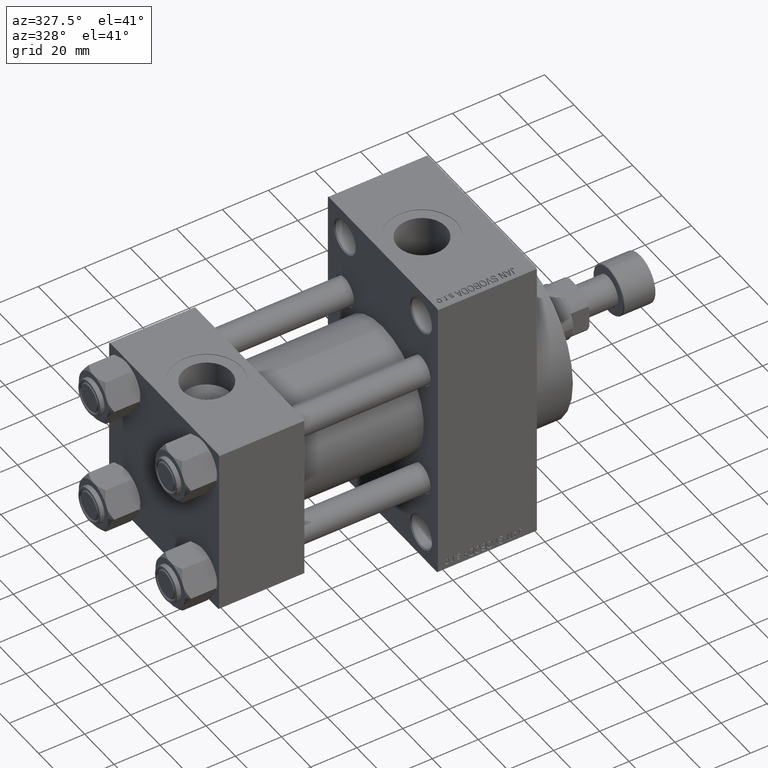
[diagram: clean part render]
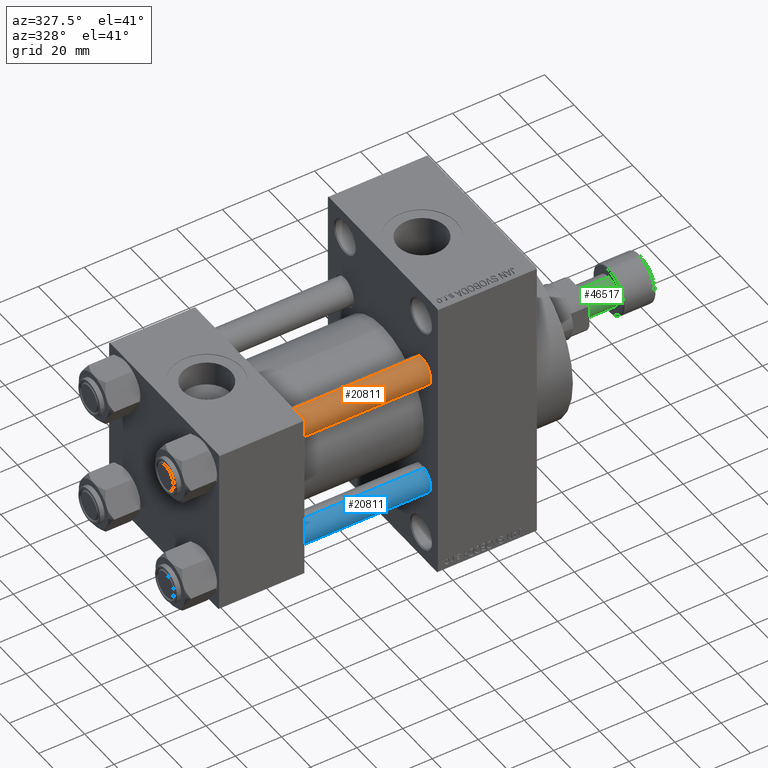
[diagram: same view with three faces highlighted in distinct colors, each labeled with its STEP entity id]
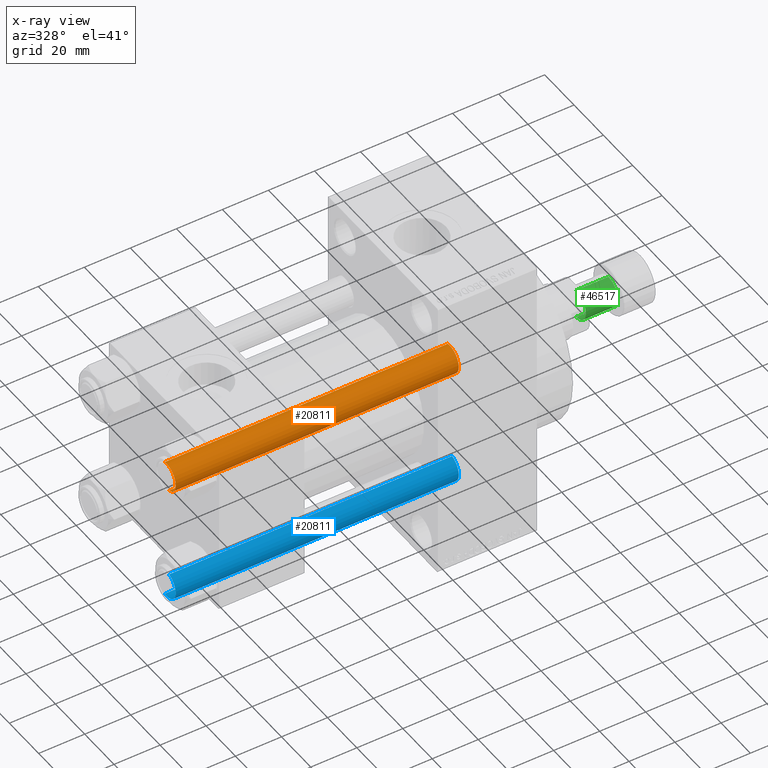
[diagram: x-ray of the same camera — body ghosted, the three highlighted faces saturated]
A machine part, auxiliary view with three faces highlighted in distinct colors.
The next image is the same camera in x-ray (body ghosted, the three faces saturated) — at least one of them is partly hidden behind the body in this view.
Their STEP definitions:

[orange] entity #20811 — the highlighted cylindrical surface (edge-blend (fillet) strip) has radius 6 mm, axis along (1, 0, 0).
#940 = CARTESIAN_POINT ( 'NONE',  ( 6.000000000000000888, 7.347880794884120722E-16, 123.5000000000000426 ) ) ;
#2737 = DIRECTION ( 'NONE',  ( -0.000000000000000000, -0.000000000000000000, -1.000000000000000000 ) ) ;
#4804 = VECTOR ( 'NONE', #46732, 1000.000000000000000 ) ;
#12340 = ORIENTED_EDGE ( 'NONE', *, *, #39469, .F. ) ;
#13114 = AXIS2_PLACEMENT_3D ( 'NONE', #14000, #30106, #18793 ) ;
#14000 = CARTESIAN_POINT ( 'NONE',  ( 0.000000000000000000, 0.000000000000000000, 0.4999999999999865663 ) ) ;
#17486 = AXIS2_PLACEMENT_3D ( 'NONE', #38247, #19477, #19004 ) ;
#17578 = VERTEX_POINT ( 'NONE', #940 ) ;
#18793 = DIRECTION ( 'NONE',  ( 1.000000000000000000, 0.000000000000000000, 0.000000000000000000 ) ) ;
#19004 = DIRECTION ( 'NONE',  ( -1.000000000000000000, 0.000000000000000000, 0.000000000000000000 ) ) ;
#19477 = DIRECTION ( 'NONE',  ( -0.000000000000000000, -0.000000000000000000, -1.000000000000000000 ) ) ;
#20811 = ADVANCED_FACE ( 'NONE', ( #34168 ), #37778, .T. ) ;
#20968 = LINE ( 'NONE', #45789, #4804 ) ;
#21013 = LINE ( 'NONE', #24866, #27952 ) ;
#21462 = CARTESIAN_POINT ( 'NONE',  ( 0.000000000000000000, 0.000000000000000000, 123.5000000000000426 ) ) ;
#23132 = VERTEX_POINT ( 'NONE', #24255 ) ;
#24255 = CARTESIAN_POINT ( 'NONE',  ( -6.000000000000000888, 0.000000000000000000, 0.4999999999999865663 ) ) ;
#24806 = VERTEX_POINT ( 'NONE', #47483 ) ;
#24866 = CARTESIAN_POINT ( 'NONE',  ( 6.000000000000000888, 7.347880794884120722E-16, 124.0000000000000000 ) ) ;
#25238 = ORIENTED_EDGE ( 'NONE', *, *, #35330, .T. ) ;
#27362 = EDGE_LOOP ( 'NONE', ( #36211, #42442, #25238, #12340 ) ) ;
#27952 = VECTOR ( 'NONE', #2737, 1000.000000000000000 ) ;
#28903 = VERTEX_POINT ( 'NONE', #38616 ) ;
#29296 = CIRCLE ( 'NONE', #46206, 6.000000000000000888 ) ;
#30106 = DIRECTION ( 'NONE',  ( -0.000000000000000000, -0.000000000000000000, 1.000000000000000000 ) ) ;
#33869 = CIRCLE ( 'NONE', #13114, 6.000000000000000888 ) ;
#34168 = FACE_OUTER_BOUND ( 'NONE', #27362, .T. ) ;
#35330 = EDGE_CURVE ( 'NONE', #28903, #23132, #33869, .T. ) ;
#36201 = EDGE_CURVE ( 'NONE', #24806, #17578, #29296, .T. ) ;
#36211 = ORIENTED_EDGE ( 'NONE', *, *, #36201, .T. ) ;
#37778 = CYLINDRICAL_SURFACE ( 'NONE', #17486, 6.000000000000000888 ) ;
#38247 = CARTESIAN_POINT ( 'NONE',  ( 0.000000000000000000, 0.000000000000000000, 124.0000000000000000 ) ) ;
#38616 = CARTESIAN_POINT ( 'NONE',  ( 6.000000000000000888, 7.347880794884120722E-16, 0.4999999999999865663 ) ) ;
#39469 = EDGE_CURVE ( 'NONE', #24806, #23132, #20968, .T. ) ;
#42074 = EDGE_CURVE ( 'NONE', #17578, #28903, #21013, .T. ) ;
#42442 = ORIENTED_EDGE ( 'NONE', *, *, #42074, .T. ) ;
#42657 = DIRECTION ( 'NONE',  ( 0.000000000000000000, 0.000000000000000000, -1.000000000000000000 ) ) ;
#43133 = DIRECTION ( 'NONE',  ( 1.000000000000000000, 0.000000000000000000, 0.000000000000000000 ) ) ;
#45789 = CARTESIAN_POINT ( 'NONE',  ( -6.000000000000000888, 0.000000000000000000, 124.0000000000000000 ) ) ;
#46206 = AXIS2_PLACEMENT_3D ( 'NONE', #21462, #42657, #43133 ) ;
#46732 = DIRECTION ( 'NONE',  ( -0.000000000000000000, -0.000000000000000000, -1.000000000000000000 ) ) ;
#47483 = CARTESIAN_POINT ( 'NONE',  ( -6.000000000000000888, 0.000000000000000000, 123.5000000000000426 ) ) ;

[blue] entity #20811 — the highlighted cylindrical surface (edge-blend (fillet) strip) has radius 6 mm, axis along (-1, 0, 0).
#940 = CARTESIAN_POINT ( 'NONE',  ( 6.000000000000000888, 7.347880794884120722E-16, 123.5000000000000426 ) ) ;
#2737 = DIRECTION ( 'NONE',  ( -0.000000000000000000, -0.000000000000000000, -1.000000000000000000 ) ) ;
#4804 = VECTOR ( 'NONE', #46732, 1000.000000000000000 ) ;
#12340 = ORIENTED_EDGE ( 'NONE', *, *, #39469, .F. ) ;
#13114 = AXIS2_PLACEMENT_3D ( 'NONE', #14000, #30106, #18793 ) ;
#14000 = CARTESIAN_POINT ( 'NONE',  ( 0.000000000000000000, 0.000000000000000000, 0.4999999999999865663 ) ) ;
#17486 = AXIS2_PLACEMENT_3D ( 'NONE', #38247, #19477, #19004 ) ;
#17578 = VERTEX_POINT ( 'NONE', #940 ) ;
#18793 = DIRECTION ( 'NONE',  ( 1.000000000000000000, 0.000000000000000000, 0.000000000000000000 ) ) ;
#19004 = DIRECTION ( 'NONE',  ( -1.000000000000000000, 0.000000000000000000, 0.000000000000000000 ) ) ;
#19477 = DIRECTION ( 'NONE',  ( -0.000000000000000000, -0.000000000000000000, -1.000000000000000000 ) ) ;
#20811 = ADVANCED_FACE ( 'NONE', ( #34168 ), #37778, .T. ) ;
#20968 = LINE ( 'NONE', #45789, #4804 ) ;
#21013 = LINE ( 'NONE', #24866, #27952 ) ;
#21462 = CARTESIAN_POINT ( 'NONE',  ( 0.000000000000000000, 0.000000000000000000, 123.5000000000000426 ) ) ;
#23132 = VERTEX_POINT ( 'NONE', #24255 ) ;
#24255 = CARTESIAN_POINT ( 'NONE',  ( -6.000000000000000888, 0.000000000000000000, 0.4999999999999865663 ) ) ;
#24806 = VERTEX_POINT ( 'NONE', #47483 ) ;
#24866 = CARTESIAN_POINT ( 'NONE',  ( 6.000000000000000888, 7.347880794884120722E-16, 124.0000000000000000 ) ) ;
#25238 = ORIENTED_EDGE ( 'NONE', *, *, #35330, .T. ) ;
#27362 = EDGE_LOOP ( 'NONE', ( #36211, #42442, #25238, #12340 ) ) ;
#27952 = VECTOR ( 'NONE', #2737, 1000.000000000000000 ) ;
#28903 = VERTEX_POINT ( 'NONE', #38616 ) ;
#29296 = CIRCLE ( 'NONE', #46206, 6.000000000000000888 ) ;
#30106 = DIRECTION ( 'NONE',  ( -0.000000000000000000, -0.000000000000000000, 1.000000000000000000 ) ) ;
#33869 = CIRCLE ( 'NONE', #13114, 6.000000000000000888 ) ;
#34168 = FACE_OUTER_BOUND ( 'NONE', #27362, .T. ) ;
#35330 = EDGE_CURVE ( 'NONE', #28903, #23132, #33869, .T. ) ;
#36201 = EDGE_CURVE ( 'NONE', #24806, #17578, #29296, .T. ) ;
#36211 = ORIENTED_EDGE ( 'NONE', *, *, #36201, .T. ) ;
#37778 = CYLINDRICAL_SURFACE ( 'NONE', #17486, 6.000000000000000888 ) ;
#38247 = CARTESIAN_POINT ( 'NONE',  ( 0.000000000000000000, 0.000000000000000000, 124.0000000000000000 ) ) ;
#38616 = CARTESIAN_POINT ( 'NONE',  ( 6.000000000000000888, 7.347880794884120722E-16, 0.4999999999999865663 ) ) ;
#39469 = EDGE_CURVE ( 'NONE', #24806, #23132, #20968, .T. ) ;
#42074 = EDGE_CURVE ( 'NONE', #17578, #28903, #21013, .T. ) ;
#42442 = ORIENTED_EDGE ( 'NONE', *, *, #42074, .T. ) ;
#42657 = DIRECTION ( 'NONE',  ( 0.000000000000000000, 0.000000000000000000, -1.000000000000000000 ) ) ;
#43133 = DIRECTION ( 'NONE',  ( 1.000000000000000000, 0.000000000000000000, 0.000000000000000000 ) ) ;
#45789 = CARTESIAN_POINT ( 'NONE',  ( -6.000000000000000888, 0.000000000000000000, 124.0000000000000000 ) ) ;
#46206 = AXIS2_PLACEMENT_3D ( 'NONE', #21462, #42657, #43133 ) ;
#46732 = DIRECTION ( 'NONE',  ( -0.000000000000000000, -0.000000000000000000, -1.000000000000000000 ) ) ;
#47483 = CARTESIAN_POINT ( 'NONE',  ( -6.000000000000000888, 0.000000000000000000, 123.5000000000000426 ) ) ;

[green] entity #46517 — the highlighted cylindrical surface (edge-blend (fillet) strip) has radius 6.5 mm, axis along (1, 0, 0).
#873 = CARTESIAN_POINT ( 'NONE',  ( 6.500000000000000888, 0.000000000000000000, -28.00000000000000000 ) ) ;
#2823 = ORIENTED_EDGE ( 'NONE', *, *, #36033, .T. ) ;
#3291 = CARTESIAN_POINT ( 'NONE',  ( 0.000000000000000000, 0.000000000000000000, -28.00000000000000000 ) ) ;
#3932 = CYLINDRICAL_SURFACE ( 'NONE', #11087, 6.500000000000000888 ) ;
#4171 = CARTESIAN_POINT ( 'NONE',  ( 0.000000000000000000, 0.000000000000000000, -27.50000000000000000 ) ) ;
#4383 = VECTOR ( 'NONE', #21690, 1000.000000000000000 ) ;
#4637 = EDGE_CURVE ( 'NONE', #45669, #20924, #15099, .T. ) ;
#6999 = CIRCLE ( 'NONE', #26999, 6.500000000000000888 ) ;
#7893 = EDGE_LOOP ( 'NONE', ( #19159, #42513, #34152, #2823 ) ) ;
#7894 = EDGE_CURVE ( 'NONE', #26894, #45669, #31688, .T. ) ;
#11087 = AXIS2_PLACEMENT_3D ( 'NONE', #4171, #21732, #36420 ) ;
#14849 = VERTEX_POINT ( 'NONE', #26276 ) ;
#15099 = LINE ( 'NONE', #22328, #27866 ) ;
#15629 = CARTESIAN_POINT ( 'NONE',  ( -6.500000000000000888, 7.960204194457796463E-16, -14.00000000000000000 ) ) ;
#17756 = CARTESIAN_POINT ( 'NONE',  ( -6.500000000000000888, 7.960204194457796463E-16, -28.00000000000000000 ) ) ;
#18629 = AXIS2_PLACEMENT_3D ( 'NONE', #3291, #46138, #28553 ) ;
#19159 = ORIENTED_EDGE ( 'NONE', *, *, #4637, .F. ) ;
#19759 = EDGE_CURVE ( 'NONE', #26894, #14849, #28924, .T. ) ;
#20924 = VERTEX_POINT ( 'NONE', #15629 ) ;
#21690 = DIRECTION ( 'NONE',  ( -0.000000000000000000, -0.000000000000000000, 1.000000000000000000 ) ) ;
#21732 = DIRECTION ( 'NONE',  ( -0.000000000000000000, -0.000000000000000000, 1.000000000000000000 ) ) ;
#22328 = CARTESIAN_POINT ( 'NONE',  ( -6.500000000000000888, 7.960204194457796463E-16, -27.50000000000000000 ) ) ;
#25303 = CARTESIAN_POINT ( 'NONE',  ( 6.500000000000000888, 0.000000000000000000, -27.50000000000000000 ) ) ;
#26276 = CARTESIAN_POINT ( 'NONE',  ( 6.500000000000000888, 0.000000000000000000, -14.00000000000000000 ) ) ;
#26894 = VERTEX_POINT ( 'NONE', #873 ) ;
#26999 = AXIS2_PLACEMENT_3D ( 'NONE', #41480, #41950, #34492 ) ;
#27866 = VECTOR ( 'NONE', #37002, 1000.000000000000000 ) ;
#28553 = DIRECTION ( 'NONE',  ( -1.000000000000000000, 0.000000000000000000, 0.000000000000000000 ) ) ;
#28924 = LINE ( 'NONE', #25303, #4383 ) ;
#29432 = FACE_OUTER_BOUND ( 'NONE', #7893, .T. ) ;
#31688 = CIRCLE ( 'NONE', #18629, 6.500000000000000888 ) ;
#34152 = ORIENTED_EDGE ( 'NONE', *, *, #19759, .T. ) ;
#34492 = DIRECTION ( 'NONE',  ( -1.000000000000000000, 0.000000000000000000, 0.000000000000000000 ) ) ;
#36033 = EDGE_CURVE ( 'NONE', #14849, #20924, #6999, .T. ) ;
#36420 = DIRECTION ( 'NONE',  ( 1.000000000000000000, 0.000000000000000000, 0.000000000000000000 ) ) ;
#37002 = DIRECTION ( 'NONE',  ( -0.000000000000000000, -0.000000000000000000, 1.000000000000000000 ) ) ;
#41480 = CARTESIAN_POINT ( 'NONE',  ( 0.000000000000000000, 0.000000000000000000, -14.00000000000000000 ) ) ;
#41950 = DIRECTION ( 'NONE',  ( 0.000000000000000000, 0.000000000000000000, -1.000000000000000000 ) ) ;
#42513 = ORIENTED_EDGE ( 'NONE', *, *, #7894, .F. ) ;
#45669 = VERTEX_POINT ( 'NONE', #17756 ) ;
#46138 = DIRECTION ( 'NONE',  ( 0.000000000000000000, 0.000000000000000000, -1.000000000000000000 ) ) ;
#46517 = ADVANCED_FACE ( 'NONE', ( #29432 ), #3932, .T. ) ;